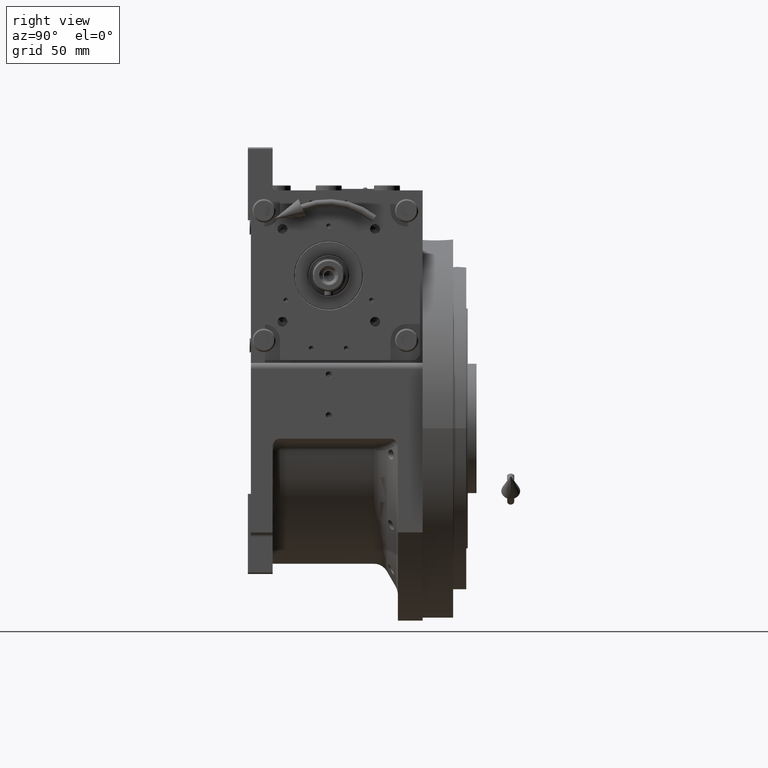
[diagram: clean part render]
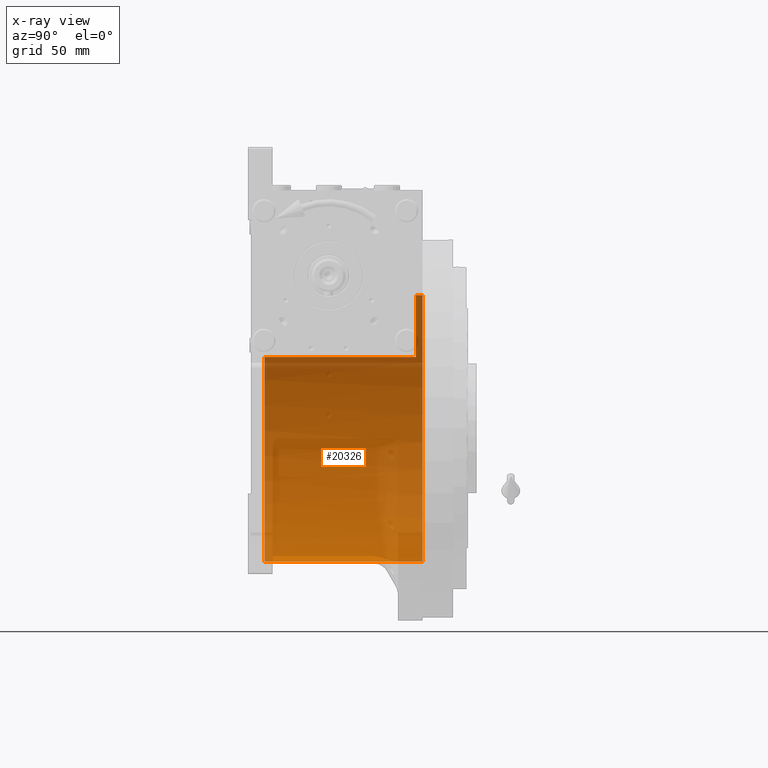
[diagram: x-ray — body ghosted, one internal face saturated and labeled with its STEP entity id]
A machine part, right view, then the same camera in x-ray: the body is ghosted and one INTERNAL B-rep face — a face not visible from any outside direction — is saturated and labeled: STEP entity #20326.
In plain terms, the highlighted cylindrical surface (partial cylindrical patch) has radius 91.5 mm, axis along (0, -1, 0).
Its self-contained STEP definition (entity closure, byte-faithful):
#2594 = FACE_OUTER_BOUND ( 'NONE', #33137, .T. ) ;
#3941 = CIRCLE ( 'NONE', #16071, 91.50000000000000000 ) ;
#4095 = CARTESIAN_POINT ( 'NONE',  ( 0.000000000000000000, -44.00000000000000000, -91.50000000000000000 ) ) ;
#8471 = CYLINDRICAL_SURFACE ( 'NONE', #56808, 91.50000000000000000 ) ;
#9126 = ORIENTED_EDGE ( 'NONE', *, *, #16770, .F. ) ;
#9281 = EDGE_CURVE ( 'NONE', #48228, #25977, #51502, .T. ) ;
#10894 = DIRECTION ( 'NONE',  ( 0.000000000000000000, 0.000000000000000000, 1.000000000000000000 ) ) ;
#13580 = ORIENTED_EDGE ( 'NONE', *, *, #19964, .F. ) ;
#14718 = CARTESIAN_POINT ( 'NONE',  ( 0.000000000000000000, 64.50000000000000000, 0.000000000000000000 ) ) ;
#16071 = AXIS2_PLACEMENT_3D ( 'NONE', #14718, #58096, #10894 ) ;
#16770 = EDGE_CURVE ( 'NONE', #22516, #48228, #63104, .T. ) ;
#17289 = VECTOR ( 'NONE', #29778, 1000.000000000000000 ) ;
#19179 = VERTEX_POINT ( 'NONE', #26055 ) ;
#19603 = CARTESIAN_POINT ( 'NONE',  ( 0.000000000000000000, -44.00000000000000000, 0.000000000000000000 ) ) ;
#19964 = EDGE_CURVE ( 'NONE', #19179, #61100, #3941, .T. ) ;
#20326 = ADVANCED_FACE ( 'NONE', ( #2594 ), #8471, .F. ) ;
#20339 = EDGE_CURVE ( 'NONE', #19179, #25977, #29165, .T. ) ;
#20395 = DIRECTION ( 'NONE',  ( 0.000000000000000000, 1.000000000000000000, 0.000000000000000000 ) ) ;
#22516 = VERTEX_POINT ( 'NONE', #67232 ) ;
#24335 = CARTESIAN_POINT ( 'NONE',  ( 1.120551821219827868E-14, 69.00000000000004263, 91.50000000000000000 ) ) ;
#25133 = CARTESIAN_POINT ( 'NONE',  ( 0.000000000000000000, 64.50000000000000000, -91.50000000000000000 ) ) ;
#25977 = VERTEX_POINT ( 'NONE', #63330 ) ;
#26055 = CARTESIAN_POINT ( 'NONE',  ( 1.120551821219827868E-14, 64.50000000000000000, 91.50000000000000000 ) ) ;
#29165 = LINE ( 'NONE', #24335, #51311 ) ;
#29778 = DIRECTION ( 'NONE',  ( 0.000000000000000000, -1.000000000000000000, 0.000000000000000000 ) ) ;
#32088 = DIRECTION ( 'NONE',  ( -0.000000000000000000, 1.000000000000000000, -0.000000000000000000 ) ) ;
#33137 = EDGE_LOOP ( 'NONE', ( #13580, #41403, #35421, #9126, #64364, #45766 ) ) ;
#33651 = DIRECTION ( 'NONE',  ( 0.000000000000000000, -1.000000000000000000, 0.000000000000000000 ) ) ;
#34343 = CARTESIAN_POINT ( 'NONE',  ( 0.000000000000000000, 69.00000000000004263, 0.000000000000000000 ) ) ;
#34909 = VERTEX_POINT ( 'NONE', #4095 ) ;
#34947 = CARTESIAN_POINT ( 'NONE',  ( 0.000000000000000000, 69.00000000000004263, -91.50000000000000000 ) ) ;
#35421 = ORIENTED_EDGE ( 'NONE', *, *, #9281, .F. ) ;
#35587 = VECTOR ( 'NONE', #32088, 1000.000000000000000 ) ;
#37253 = CARTESIAN_POINT ( 'NONE',  ( -77.27386362800812947, 69.00000000000004263, 48.99999999999998579 ) ) ;
#37783 = EDGE_CURVE ( 'NONE', #34909, #22516, #48243, .T. ) ;
#39443 = AXIS2_PLACEMENT_3D ( 'NONE', #56903, #20395, #41412 ) ;
#40618 = DIRECTION ( 'NONE',  ( 0.000000000000000000, 0.000000000000000000, 1.000000000000000000 ) ) ;
#41403 = ORIENTED_EDGE ( 'NONE', *, *, #20339, .T. ) ;
#41412 = DIRECTION ( 'NONE',  ( 1.776356839400250465E-15, 0.000000000000000000, -1.000000000000000000 ) ) ;
#45766 = ORIENTED_EDGE ( 'NONE', *, *, #64853, .F. ) ;
#48228 = VERTEX_POINT ( 'NONE', #54145 ) ;
#48243 = CIRCLE ( 'NONE', #61459, 91.50000000000000000 ) ;
#51311 = VECTOR ( 'NONE', #61195, 1000.000000000000000 ) ;
#51502 = CIRCLE ( 'NONE', #39443, 91.50000000000000000 ) ;
#54145 = CARTESIAN_POINT ( 'NONE',  ( -77.27386362800814368, 60.00000000000000000, 48.99999999999998579 ) ) ;
#54655 = DIRECTION ( 'NONE',  ( 0.000000000000000000, 0.000000000000000000, -1.000000000000000000 ) ) ;
#56808 = AXIS2_PLACEMENT_3D ( 'NONE', #34343, #33651, #54655 ) ;
#56903 = CARTESIAN_POINT ( 'NONE',  ( 0.000000000000000000, 60.00000000000000000, 0.000000000000000000 ) ) ;
#58096 = DIRECTION ( 'NONE',  ( -0.000000000000000000, -1.000000000000000000, -0.000000000000000000 ) ) ;
#61100 = VERTEX_POINT ( 'NONE', #25133 ) ;
#61112 = LINE ( 'NONE', #34947, #17289 ) ;
#61195 = DIRECTION ( 'NONE',  ( 0.000000000000000000, -1.000000000000000000, 0.000000000000000000 ) ) ;
#61459 = AXIS2_PLACEMENT_3D ( 'NONE', #19603, #61641, #40618 ) ;
#61641 = DIRECTION ( 'NONE',  ( 0.000000000000000000, 1.000000000000000000, 0.000000000000000000 ) ) ;
#63104 = LINE ( 'NONE', #37253, #35587 ) ;
#63330 = CARTESIAN_POINT ( 'NONE',  ( 1.120551821219827868E-14, 60.00000000000000000, 91.50000000000000000 ) ) ;
#64364 = ORIENTED_EDGE ( 'NONE', *, *, #37783, .F. ) ;
#64853 = EDGE_CURVE ( 'NONE', #61100, #34909, #61112, .T. ) ;
#67232 = CARTESIAN_POINT ( 'NONE',  ( -77.27386362800814368, -44.00000000000000000, 49.00000000000000000 ) ) ;